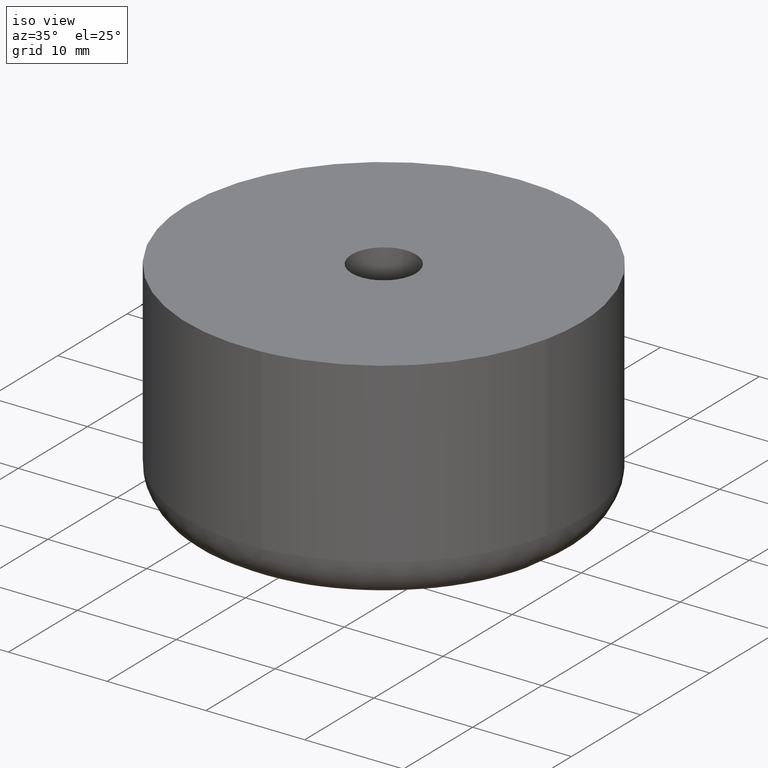
[diagram: clean part render]
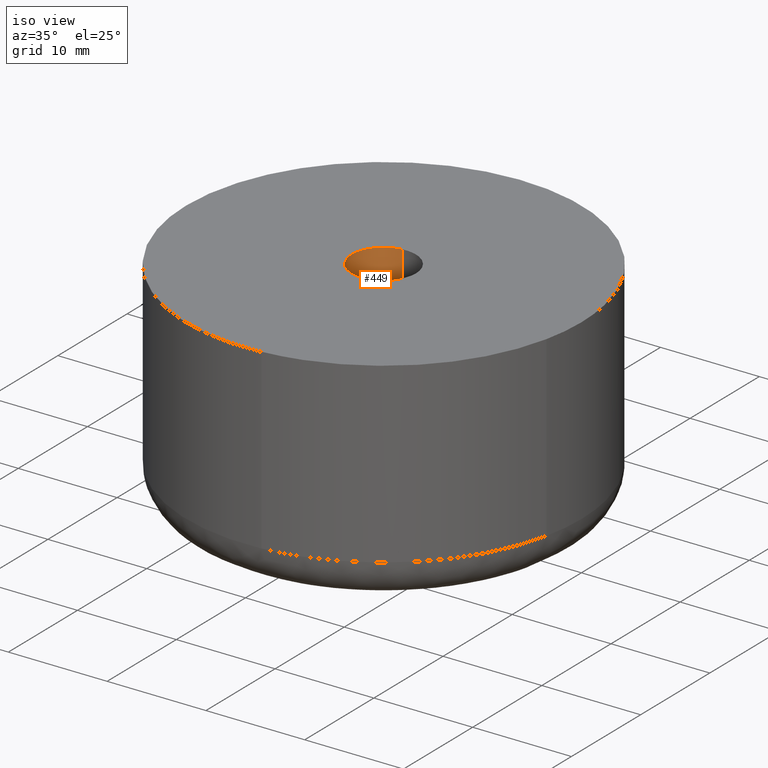
[diagram: same view with one face highlighted and labeled with its STEP entity id]
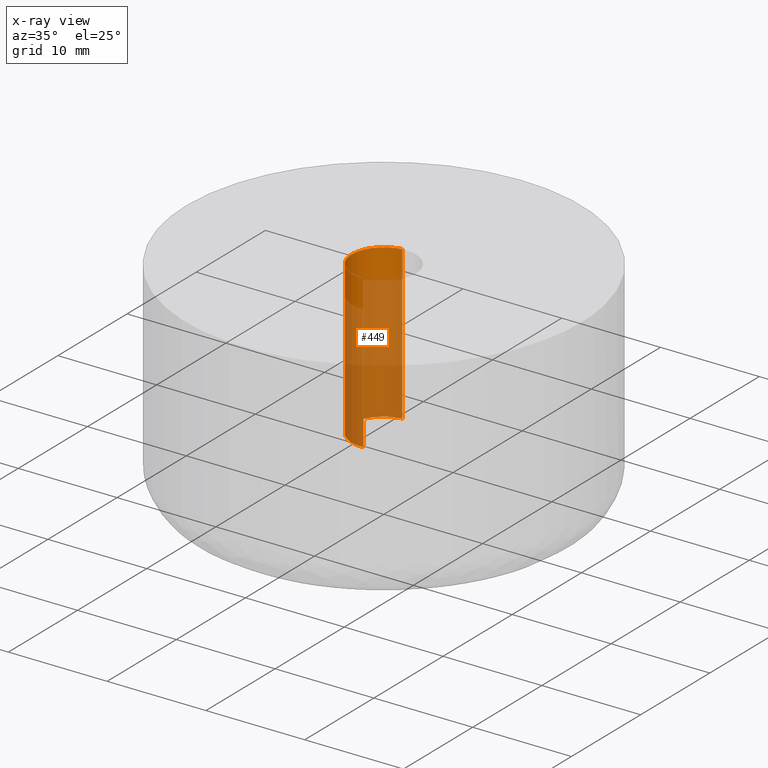
[diagram: x-ray of the same camera — body ghosted, the highlighted face saturated]
A machine part, iso view. The second image highlights one B-rep face of the part: STEP entity #449.
The next image is the same camera in x-ray: the body ghosted, the highlighted face saturated — about 78% of this face is hidden behind the body in this view.
In plain terms, the highlighted face is a freeform B-spline surface patch.
Its self-contained STEP definition (entity closure, byte-faithful):
#286=CARTESIAN_POINT('',(-0.383611262676458,3.227280960676924,22.0));
#287=VERTEX_POINT('',#286);
#305=CARTESIAN_POINT('',(-0.383611262676458,3.227280960676924,6.500000000000100));
#306=VERTEX_POINT('',#305);
#307=CARTESIAN_POINT('',(-0.383611262676458,3.227280960676924,22.0));
#308=CARTESIAN_POINT('',(-0.383611262676458,3.227280960676924,6.500000000000100));
#309=QUASI_UNIFORM_CURVE('',1,(#307,#308),.UNSPECIFIED.,.F.,.U.);
#310=EDGE_CURVE('',#287,#306,#309,.T.);
#329=CARTESIAN_POINT('',(0.198407753558545,-3.243938094866770,6.500000000000100));
#330=VERTEX_POINT('',#329);
#344=CARTESIAN_POINT('',(0.198407753558544,-3.243938094866770,22.0));
#345=VERTEX_POINT('',#344);
#346=CARTESIAN_POINT('',(0.198407753558544,-3.243938094866770,22.0));
#347=CARTESIAN_POINT('',(0.198407753558545,-3.243938094866770,6.500000000000100));
#348=QUASI_UNIFORM_CURVE('',1,(#346,#347),.UNSPECIFIED.,.F.,.U.);
#349=EDGE_CURVE('',#345,#330,#348,.T.);
#367=CARTESIAN_POINT('',(0.198407753488285,-3.243938094871067,22.387499999999999));
#368=CARTESIAN_POINT('',(-3.045530341382781,-3.442345848359353,22.387500000000010));
#369=CARTESIAN_POINT('',(-3.243938094871067,-0.198407753488285,22.387499999999999));
#370=CARTESIAN_POINT('',(-3.431305139380714,2.865016345228379,22.387500000000010));
#371=CARTESIAN_POINT('',(-0.383611262634465,3.227280960681916,22.387500000000003));
#372=CARTESIAN_POINT('',(0.198407753488285,-3.243938094871067,6.102812500000102));
#373=CARTESIAN_POINT('',(-3.045530341382781,-3.442345848359353,6.102812500000101));
#374=CARTESIAN_POINT('',(-3.243938094871067,-0.198407753488285,6.102812500000102));
#375=CARTESIAN_POINT('',(-3.431305139380714,2.865016345228379,6.102812500000102));
#376=CARTESIAN_POINT('',(-0.383611262634465,3.227280960681916,6.102812500000103));
#384=(BOUNDED_SURFACE()B_SPLINE_SURFACE(2,1,((#367,#372),(#368,#373),(#369,#374),(#370,#375),(#371,#376)),.UNSPECIFIED.,.F.,.F.,.U.)B_SPLINE_SURFACE_WITH_KNOTS((3,2,3),(2,2),(0.0,5.384776310850235,10.554161569266460),(0.0,16.284687499999912),.UNSPECIFIED.)GEOMETRIC_REPRESENTATION_ITEM()RATIONAL_B_SPLINE_SURFACE(((1.0,1.0),(0.707106781186548,0.707106781186548),(1.0,1.0),(0.718822509939086,0.718822509939086),(0.977505800795127,0.977505800795127)))REPRESENTATION_ITEM('')SURFACE());
#385=CARTESIAN_POINT('',(-3.250000000000000,0.0,22.0));
#386=VERTEX_POINT('',#385);
#387=CARTESIAN_POINT('',(-3.250000000000000,0.0,22.0));
#388=CARTESIAN_POINT('',(-3.250000000000001,2.886567209266297,21.999999999999996));
#389=CARTESIAN_POINT('',(-0.383611262676458,3.227280960676925,22.000000000000004));
#397=(BOUNDED_CURVE()B_SPLINE_CURVE(2,(#387,#388,#389),.UNSPECIFIED.,.F.,.U.)B_SPLINE_CURVE_WITH_KNOTS((3,3),(0.0,0.229562473511246),.UNSPECIFIED.)CURVE()GEOMETRIC_REPRESENTATION_ITEM()RATIONAL_B_SPLINE_CURVE((1.0,0.731050832858053,0.956026754179265))REPRESENTATION_ITEM(''));
#398=EDGE_CURVE('',#386,#287,#397,.T.);
#399=ORIENTED_EDGE('',*,*,#398,.F.);
#400=CARTESIAN_POINT('',(0.198407753558544,-3.243938094866769,22.000000000000004));
#401=CARTESIAN_POINT('',(0.099296480790870,-3.250000000000000,22.000000000000007));
#402=CARTESIAN_POINT('',(0.0,-3.250000000000000,22.0));
#403=CARTESIAN_POINT('',(-3.250000000000000,-3.250000000000000,21.999999999999993));
#404=CARTESIAN_POINT('',(-3.250000000000000,0.0,22.0));
#412=(BOUNDED_CURVE()B_SPLINE_CURVE(2,(#400,#401,#402,#403,#404),.UNSPECIFIED.,.F.,.U.)B_SPLINE_CURVE_WITH_KNOTS((3,2,3),(0.739332962234494,0.750000000000000,1.0),.UNSPECIFIED.)CURVE()GEOMETRIC_REPRESENTATION_ITEM()RATIONAL_B_SPLINE_CURVE((0.976072041657183,0.987502787894625,1.0,0.707106781186547,1.0))REPRESENTATION_ITEM(''));
#413=EDGE_CURVE('',#345,#386,#412,.T.);
#414=ORIENTED_EDGE('',*,*,#413,.F.);
#415=ORIENTED_EDGE('',*,*,#349,.T.);
#416=CARTESIAN_POINT('',(-3.250000000000000,0.0,6.500000000000100));
#417=VERTEX_POINT('',#416);
#418=CARTESIAN_POINT('',(0.198407753558545,-3.243938094866770,6.500000000000100));
#419=CARTESIAN_POINT('',(0.099296480790871,-3.250000000000000,6.500000000000100));
#420=CARTESIAN_POINT('',(0.0,-3.250000000000000,6.500000000000100));
#421=CARTESIAN_POINT('',(-3.250000000000000,-3.250000000000000,6.500000000000099));
#422=CARTESIAN_POINT('',(-3.250000000000000,0.0,6.500000000000100));
#430=(BOUNDED_CURVE()B_SPLINE_CURVE(2,(#418,#419,#420,#421,#422),.UNSPECIFIED.,.F.,.U.)B_SPLINE_CURVE_WITH_KNOTS((3,2,3),(0.739332962234494,0.750000000000000,1.0),.UNSPECIFIED.)CURVE()GEOMETRIC_REPRESENTATION_ITEM()RATIONAL_B_SPLINE_CURVE((0.976072041657183,0.987502787894625,1.0,0.707106781186547,1.0))REPRESENTATION_ITEM(''));
#431=EDGE_CURVE('',#330,#417,#430,.T.);
#432=ORIENTED_EDGE('',*,*,#431,.T.);
#433=CARTESIAN_POINT('',(-3.250000000000000,0.0,6.500000000000100));
#434=CARTESIAN_POINT('',(-3.250000000000001,2.886567209266298,6.500000000000098));
#435=CARTESIAN_POINT('',(-0.383611262676458,3.227280960676925,6.500000000000100));
#443=(BOUNDED_CURVE()B_SPLINE_CURVE(2,(#433,#434,#435),.UNSPECIFIED.,.F.,.U.)B_SPLINE_CURVE_WITH_KNOTS((3,3),(0.0,0.229562473511246),.UNSPECIFIED.)CURVE()GEOMETRIC_REPRESENTATION_ITEM()RATIONAL_B_SPLINE_CURVE((1.0,0.731050832858053,0.956026754179265))REPRESENTATION_ITEM(''));
#444=EDGE_CURVE('',#417,#306,#443,.T.);
#445=ORIENTED_EDGE('',*,*,#444,.T.);
#446=ORIENTED_EDGE('',*,*,#310,.F.);
#447=EDGE_LOOP('',(#399,#414,#415,#432,#445,#446));
#448=FACE_OUTER_BOUND('',#447,.T.);
#449=ADVANCED_FACE('',(#448),#384,.F.);